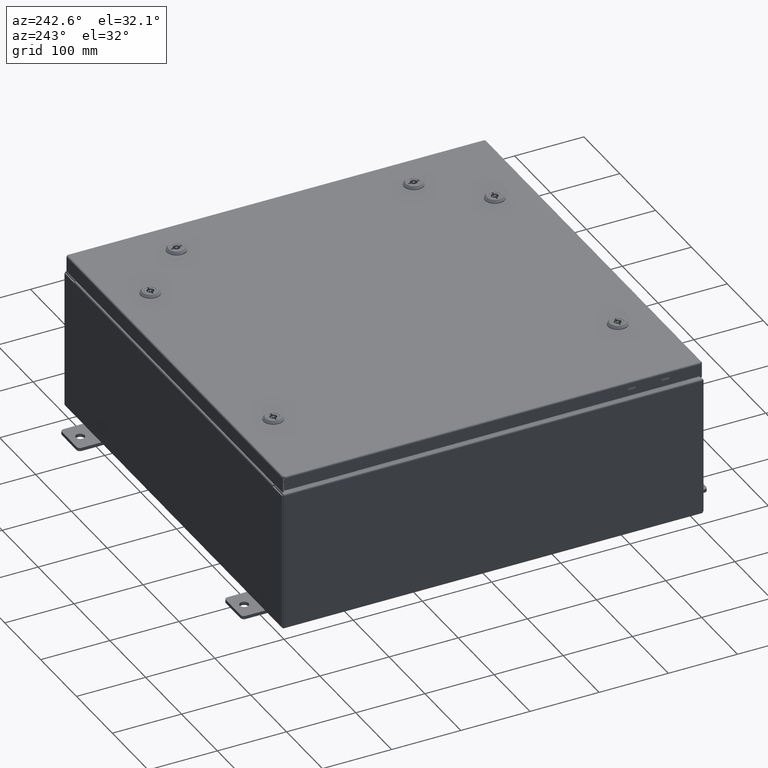
[diagram: clean part render]
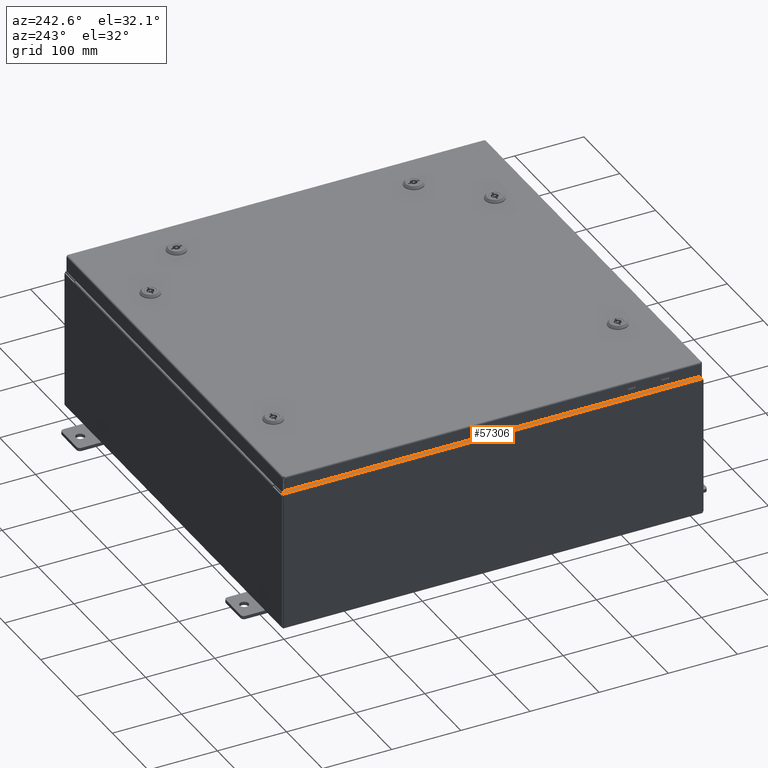
[diagram: same view with one face highlighted and labeled with its STEP entity id]
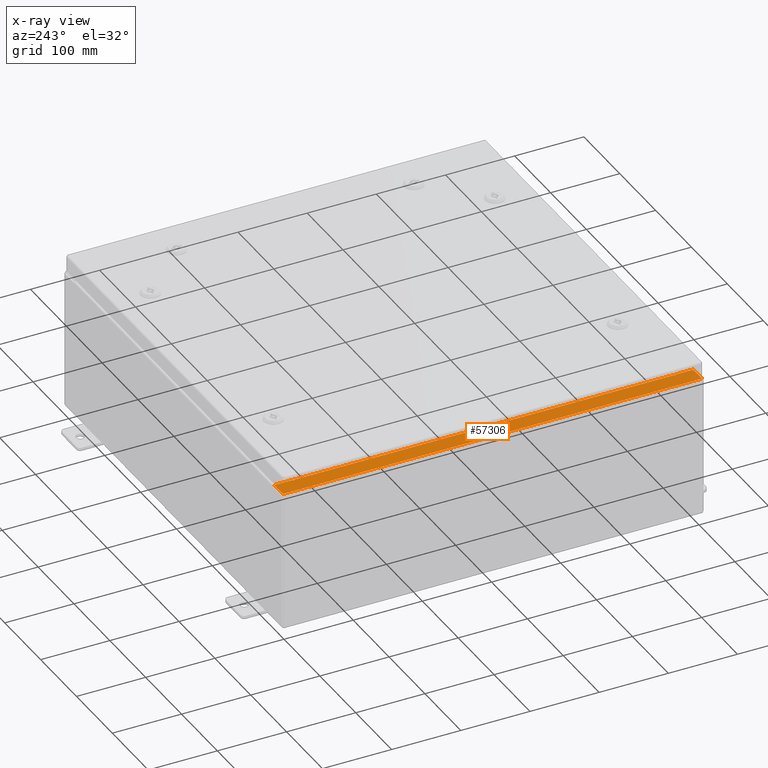
[diagram: x-ray of the same camera — body ghosted, the highlighted face saturated]
A machine part, auxiliary view. The second image highlights one B-rep face of the part: STEP entity #57306.
The next image is the same camera in x-ray: the body ghosted, the highlighted face saturated — about 0% of this face is hidden behind the body in this view.
In plain terms, the highlighted planar face has unit normal (0, 0, -1).
Its self-contained STEP definition (entity closure, byte-faithful):
#353 = VERTEX_POINT ( 'NONE', #41032 ) ;
#419 = DIRECTION ( 'NONE',  ( 1.000000000000000000, 0.0000000000000000000, 0.0000000000000000000 ) ) ;
#1462 = ORIENTED_EDGE ( 'NONE', *, *, #15391, .F. ) ;
#1484 = ORIENTED_EDGE ( 'NONE', *, *, #19967, .F. ) ;
#1996 = CARTESIAN_POINT ( 'NONE',  ( -11.00005000000003000, 10.88109999999999800, 7.925300000000005300 ) ) ;
#2113 = CARTESIAN_POINT ( 'NONE',  ( -10.96270000000003200, 10.84374999999999800, 7.925300000000006200 ) ) ;
#3165 = EDGE_CURVE ( 'NONE', #7360, #13778, #29391, .T. ) ;
#4152 = CARTESIAN_POINT ( 'NONE',  ( -10.96270000000003200, -10.84374999999998800, 7.925300000000006200 ) ) ;
#4272 = VECTOR ( 'NONE', #9091, 39.37007874015748100 ) ;
#4344 = LINE ( 'NONE', #55335, #53503 ) ;
#5241 = AXIS2_PLACEMENT_3D ( 'NONE', #23258, #57516, #28202 ) ;
#6435 = DIRECTION ( 'NONE',  ( -0.0000000000000000000, 1.000000000000000000, -0.0000000000000000000 ) ) ;
#7360 = VERTEX_POINT ( 'NONE', #9545 ) ;
#7487 = VERTEX_POINT ( 'NONE', #1996 ) ;
#7497 = DIRECTION ( 'NONE',  ( 1.000000000000000000, 0.0000000000000000000, 0.0000000000000000000 ) ) ;
#7597 = VERTEX_POINT ( 'NONE', #39441 ) ;
#8094 = VERTEX_POINT ( 'NONE', #56940 ) ;
#8276 = LINE ( 'NONE', #10088, #47458 ) ;
#8538 = EDGE_CURVE ( 'NONE', #353, #59171, #12994, .T. ) ;
#8784 = EDGE_CURVE ( 'NONE', #8094, #23073, #47509, .T. ) ;
#8988 = CARTESIAN_POINT ( 'NONE',  ( -11.00005000000003000, -10.88109999999998800, 7.925300000000006200 ) ) ;
#9091 = DIRECTION ( 'NONE',  ( -1.000000000000000000, 0.0000000000000000000, 0.0000000000000000000 ) ) ;
#9341 = ORIENTED_EDGE ( 'NONE', *, *, #26130, .T. ) ;
#9545 = CARTESIAN_POINT ( 'NONE',  ( -10.94970000000003000, 11.92529999999999800, 7.925300000000006200 ) ) ;
#10088 = CARTESIAN_POINT ( 'NONE',  ( -5.352210493322583500E-014, -11.92530000000000000, 7.925300000000079900 ) ) ;
#10996 = CIRCLE ( 'NONE', #5241, 0.01867499999999949400 ) ;
#11465 = ORIENTED_EDGE ( 'NONE', *, *, #61296, .F. ) ;
#11660 = ORIENTED_EDGE ( 'NONE', *, *, #30222, .F. ) ;
#12506 = CIRCLE ( 'NONE', #28257, 0.01867499999999949400 ) ;
#12585 = VERTEX_POINT ( 'NONE', #39180 ) ;
#12994 = LINE ( 'NONE', #22365, #52119 ) ;
#13194 = CARTESIAN_POINT ( 'NONE',  ( -10.94970000000003000, 10.88110000000000000, 7.925300000000006200 ) ) ;
#13778 = VERTEX_POINT ( 'NONE', #37901 ) ;
#13862 = EDGE_LOOP ( 'NONE', ( #11660, #20856, #18630, #1484, #50037, #9341, #25453, #11465, #49741, #1462, #56925, #57738 ) ) ;
#14041 = DIRECTION ( 'NONE',  ( -1.000000000000000000, 0.0000000000000000000, -6.720413268546771600E-015 ) ) ;
#14547 = CARTESIAN_POINT ( 'NONE',  ( -10.96270000000003200, 10.84374999999999600, 7.925300000000006200 ) ) ;
#15391 = EDGE_CURVE ( 'NONE', #59171, #12585, #58238, .T. ) ;
#15722 = DIRECTION ( 'NONE',  ( 0.0000000000000000000, 1.000000000000000000, 0.0000000000000000000 ) ) ;
#16211 = AXIS2_PLACEMENT_3D ( 'NONE', #26931, #61164, #31832 ) ;
#16799 = VERTEX_POINT ( 'NONE', #38008 ) ;
#17041 = PLANE ( 'NONE',  #16211 ) ;
#17841 = CARTESIAN_POINT ( 'NONE',  ( -10.94970000000003000, -11.92530000000000000, 7.925300000000006200 ) ) ;
#18630 = ORIENTED_EDGE ( 'NONE', *, *, #3165, .T. ) ;
#18898 = DIRECTION ( 'NONE',  ( 1.000000000000000000, 0.0000000000000000000, 0.0000000000000000000 ) ) ;
#19410 = EDGE_CURVE ( 'NONE', #12585, #7597, #56448, .T. ) ;
#19967 = EDGE_CURVE ( 'NONE', #16799, #13778, #4344, .T. ) ;
#20856 = ORIENTED_EDGE ( 'NONE', *, *, #33363, .T. ) ;
#21440 = VECTOR ( 'NONE', #18898, 39.37007874015748100 ) ;
#22365 = CARTESIAN_POINT ( 'NONE',  ( -11.00005000000003000, 10.84374999999999800, 7.925300000000006200 ) ) ;
#23073 = VERTEX_POINT ( 'NONE', #38806 ) ;
#23258 = CARTESIAN_POINT ( 'NONE',  ( -11.00005000000003000, 10.86242499999999800, 7.925300000000006200 ) ) ;
#25453 = ORIENTED_EDGE ( 'NONE', *, *, #8784, .F. ) ;
#25655 = DIRECTION ( 'NONE',  ( -1.000000000000000000, -4.340572780400098900E-014, 0.0000000000000000000 ) ) ;
#26130 = EDGE_CURVE ( 'NONE', #56668, #23073, #50136, .T. ) ;
#26931 = CARTESIAN_POINT ( 'NONE',  ( -5.352210493322583500E-014, 0.0000000000000000000, 7.925300000000079900 ) ) ;
#28202 = DIRECTION ( 'NONE',  ( 1.000000000000000000, 0.0000000000000000000, 0.0000000000000000000 ) ) ;
#28257 = AXIS2_PLACEMENT_3D ( 'NONE', #59185, #29847, #419 ) ;
#29391 = LINE ( 'NONE', #33980, #30906 ) ;
#29847 = DIRECTION ( 'NONE',  ( -6.720413268546770800E-015, -0.0000000000000000000, 1.000000000000000000 ) ) ;
#30222 = EDGE_CURVE ( 'NONE', #44530, #7487, #49888, .T. ) ;
#30906 = VECTOR ( 'NONE', #14041, 39.37007874015748100 ) ;
#31832 = DIRECTION ( 'NONE',  ( -1.000000000000000000, 0.0000000000000000000, -6.720413268546771600E-015 ) ) ;
#33363 = EDGE_CURVE ( 'NONE', #44530, #7360, #45948, .T. ) ;
#33980 = CARTESIAN_POINT ( 'NONE',  ( -5.352210493322583500E-014, 11.92529999999999800, 7.925300000000079900 ) ) ;
#34254 = EDGE_CURVE ( 'NONE', #16799, #56668, #8276, .T. ) ;
#35062 = CARTESIAN_POINT ( 'NONE',  ( -10.94970000000003000, 0.0000000000000000000, 7.925300000000006200 ) ) ;
#36859 = VECTOR ( 'NONE', #25655, 39.37007874015748100 ) ;
#37901 = CARTESIAN_POINT ( 'NONE',  ( -11.91230000000003200, 11.92529999999999800, 7.925300000000000000 ) ) ;
#38008 = CARTESIAN_POINT ( 'NONE',  ( -11.91230000000003200, -11.92530000000000000, 7.925300000000000000 ) ) ;
#38646 = VECTOR ( 'NONE', #15722, 39.37007874015748100 ) ;
#38806 = CARTESIAN_POINT ( 'NONE',  ( -10.94970000000003000, -10.88109999999998400, 7.925300000000006200 ) ) ;
#39180 = CARTESIAN_POINT ( 'NONE',  ( -10.96270000000003200, -10.84374999999998800, 7.925300000000006200 ) ) ;
#39441 = CARTESIAN_POINT ( 'NONE',  ( -11.00005000000003000, -10.84374999999998800, 7.925300000000005300 ) ) ;
#39985 = DIRECTION ( 'NONE',  ( 0.0000000000000000000, 1.000000000000000000, 0.0000000000000000000 ) ) ;
#41032 = CARTESIAN_POINT ( 'NONE',  ( -11.00005000000003000, 10.84374999999999800, 7.925300000000005300 ) ) ;
#43908 = DIRECTION ( 'NONE',  ( -0.0000000000000000000, -1.000000000000000000, -0.0000000000000000000 ) ) ;
#44386 = DIRECTION ( 'NONE',  ( 1.000000000000000000, -0.0000000000000000000, 6.720413268546771600E-015 ) ) ;
#44530 = VERTEX_POINT ( 'NONE', #13194 ) ;
#45054 = CARTESIAN_POINT ( 'NONE',  ( -10.94970000000003000, 0.0000000000000000000, 7.925300000000006200 ) ) ;
#45948 = LINE ( 'NONE', #35062, #57451 ) ;
#47458 = VECTOR ( 'NONE', #44386, 39.37007874015748100 ) ;
#47509 = LINE ( 'NONE', #8988, #21440 ) ;
#48049 = FACE_OUTER_BOUND ( 'NONE', #13862, .T. ) ;
#48299 = VECTOR ( 'NONE', #43908, 39.37007874015748100 ) ;
#49741 = ORIENTED_EDGE ( 'NONE', *, *, #19410, .F. ) ;
#49888 = LINE ( 'NONE', #50078, #36859 ) ;
#50037 = ORIENTED_EDGE ( 'NONE', *, *, #34254, .T. ) ;
#50078 = CARTESIAN_POINT ( 'NONE',  ( -10.94970000000003000, 10.88110000000000000, 7.925300000000006200 ) ) ;
#50136 = LINE ( 'NONE', #45054, #38646 ) ;
#51118 = EDGE_CURVE ( 'NONE', #7487, #353, #10996, .T. ) ;
#52119 = VECTOR ( 'NONE', #7497, 39.37007874015748100 ) ;
#53503 = VECTOR ( 'NONE', #6435, 39.37007874015748100 ) ;
#55335 = CARTESIAN_POINT ( 'NONE',  ( -11.91230000000003200, 11.92529999999999800, 7.925300000000000000 ) ) ;
#56448 = LINE ( 'NONE', #4152, #4272 ) ;
#56668 = VERTEX_POINT ( 'NONE', #17841 ) ;
#56925 = ORIENTED_EDGE ( 'NONE', *, *, #8538, .F. ) ;
#56940 = CARTESIAN_POINT ( 'NONE',  ( -11.00005000000003000, -10.88109999999998800, 7.925300000000005300 ) ) ;
#57306 = ADVANCED_FACE ( 'NONE', ( #48049 ), #17041, .F. ) ;
#57451 = VECTOR ( 'NONE', #39985, 39.37007874015748100 ) ;
#57516 = DIRECTION ( 'NONE',  ( -6.720413268546770800E-015, -0.0000000000000000000, 1.000000000000000000 ) ) ;
#57738 = ORIENTED_EDGE ( 'NONE', *, *, #51118, .F. ) ;
#58238 = LINE ( 'NONE', #14547, #48299 ) ;
#59171 = VERTEX_POINT ( 'NONE', #2113 ) ;
#59185 = CARTESIAN_POINT ( 'NONE',  ( -11.00005000000003000, -10.86242499999998800, 7.925300000000006200 ) ) ;
#61164 = DIRECTION ( 'NONE',  ( 6.720413268546771600E-015, 0.0000000000000000000, -1.000000000000000000 ) ) ;
#61296 = EDGE_CURVE ( 'NONE', #7597, #8094, #12506, .T. ) ;